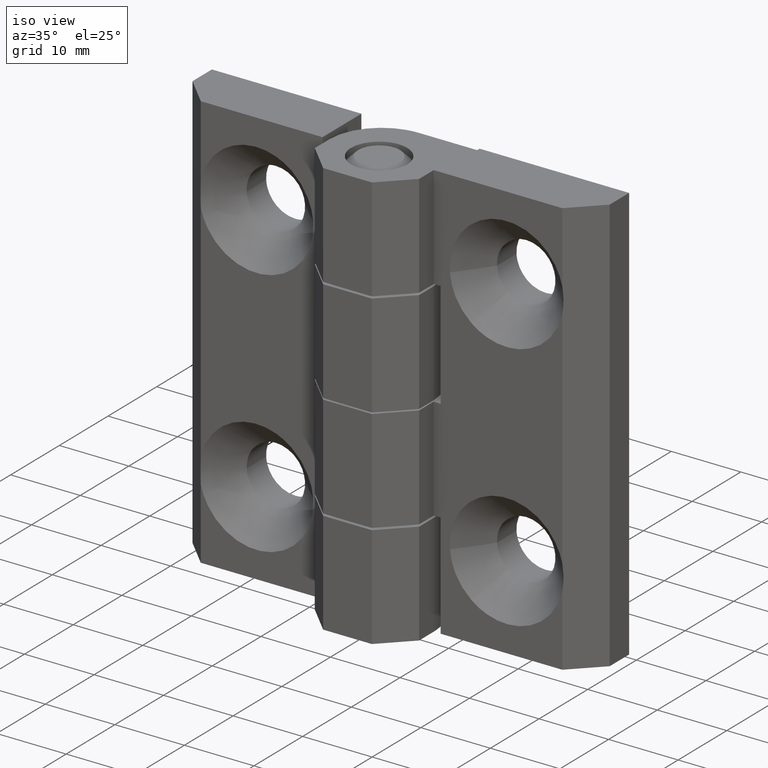
[diagram: clean part render]
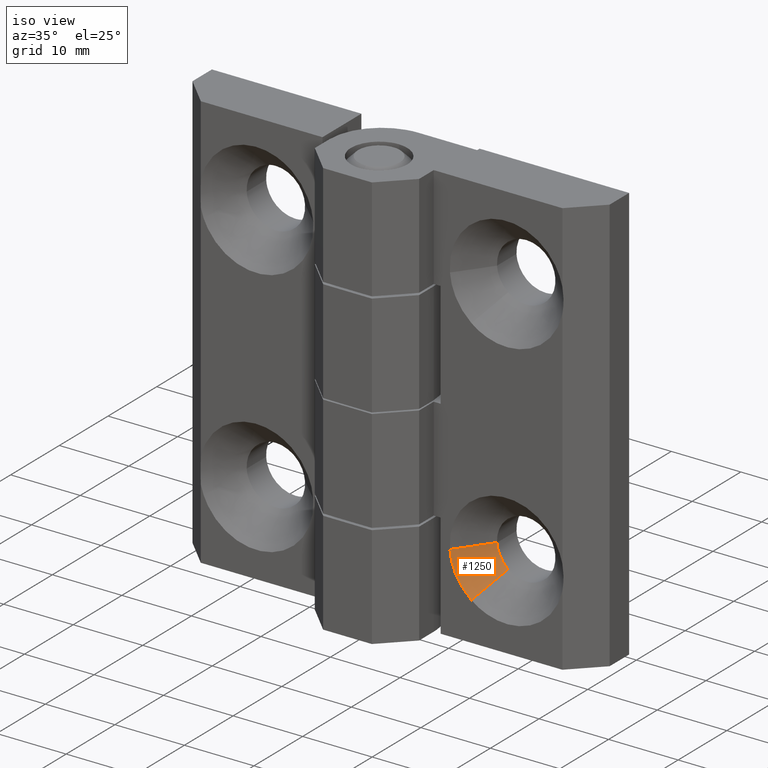
[diagram: same view with one face highlighted and labeled with its STEP entity id]
A machine part, iso view. The second image highlights one B-rep face of the part: STEP entity #1250.
In plain terms, the highlighted face is a freeform B-spline surface patch.
Its self-contained STEP definition (entity closure, byte-faithful):
#1003=CARTESIAN_POINT('',(13.807833080246731,4.500000213738550,11.743598313889439));
#1004=VERTEX_POINT('',#1003);
#1010=CARTESIAN_POINT('',(15.397966927834700,4.500000213737602,8.703119951495719));
#1011=VERTEX_POINT('',#1010);
#1012=CARTESIAN_POINT('',(15.397966927834695,4.500000213737601,8.703119951495719));
#1013=CARTESIAN_POINT('',(13.922576613751430,4.500000213738549,9.867558129953537));
#1014=CARTESIAN_POINT('',(13.807833080246729,4.500000213738549,11.743598313889439));
#1022=(BOUNDED_CURVE()B_SPLINE_CURVE(2,(#1012,#1013,#1014),.UNSPECIFIED.,.F.,.U.)B_SPLINE_CURVE_WITH_KNOTS((3,3),(0.607287704673677,0.739332962210119),.UNSPECIFIED.)CURVE()GEOMETRIC_REPRESENTATION_ITEM()RATIONAL_B_SPLINE_CURVE((0.856493807998295,0.834572980327044,0.976072041604942))REPRESENTATION_ITEM(''));
#1023=EDGE_CURVE('',#1011,#1004,#1022,.T.);
#1151=CARTESIAN_POINT('',(12.919840218967870,0.500000023747351,5.563233084947359));
#1152=VERTEX_POINT('',#1151);
#1153=CARTESIAN_POINT('',(15.397966927834700,4.500000213737602,8.703119951495719));
#1154=CARTESIAN_POINT('',(12.919840218967870,0.500000023747351,5.563233084947359));
#1155=QUASI_UNIFORM_CURVE('',1,(#1153,#1154),.UNSPECIFIED.,.F.,.U.);
#1156=EDGE_CURVE('',#1011,#1152,#1155,.T.);
#1184=CARTESIAN_POINT('',(9.828993015170363,0.500000023732270,11.311046084849741));
#1185=VERTEX_POINT('',#1184);
#1203=CARTESIAN_POINT('',(13.807833080246731,4.500000213738550,11.743598313889439));
#1204=CARTESIAN_POINT('',(9.828993015170363,0.500000023732270,11.311046084849741));
#1205=QUASI_UNIFORM_CURVE('',1,(#1203,#1204),.UNSPECIFIED.,.F.,.U.);
#1206=EDGE_CURVE('',#1004,#1185,#1205,.T.);
#1214=CARTESIAN_POINT('',(13.905357210387852,4.600000218488296,11.763912669761398));
#1215=CARTESIAN_POINT('',(13.909901471659609,4.600000218488296,11.710017814395240));
#1216=CARTESIAN_POINT('',(14.063916710903442,4.600000218488295,9.883399900760612));
#1217=CARTESIAN_POINT('',(15.467067100129340,4.600000218488296,8.775976415812416));
#1218=CARTESIAN_POINT('',(15.474213578770859,4.600000218488296,8.770336123550756));
#1219=CARTESIAN_POINT('',(9.708348933345258,0.397500018880243,11.521920903494575));
#1220=CARTESIAN_POINT('',(9.717551060801762,0.397500018880243,11.412783840577113));
#1221=CARTESIAN_POINT('',(10.029431865405563,0.397500018880243,7.713883216164438));
#1222=CARTESIAN_POINT('',(12.870810903742717,0.397500018880243,5.471351053642628));
#1223=CARTESIAN_POINT('',(12.885282520445999,0.397500018880243,5.459929463822012));
#1231=(BOUNDED_SURFACE()B_SPLINE_SURFACE(2,1,((#1214,#1219),(#1215,#1220),(#1216,#1221),(#1217,#1222),(#1218,#1223)),.UNSPECIFIED.,.F.,.F.,.U.)B_SPLINE_SURFACE_WITH_KNOTS((3,1,1,3),(2,2),(0.0,0.260833718453944,7.411482797931126,7.448355845824291),(0.0,5.944278460857187),.UNSPECIFIED.)GEOMETRIC_REPRESENTATION_ITEM()RATIONAL_B_SPLINE_SURFACE(((1.011111198939410,1.011111198939410),(1.005555599469705,1.005555599469705),(0.847695526217005,0.847695526217005),(0.853819120107549,0.853819120107549),(0.853850535046773,0.853850535046773)))REPRESENTATION_ITEM('')SURFACE());
#1232=ORIENTED_EDGE('',*,*,#1023,.T.);
#1233=ORIENTED_EDGE('',*,*,#1206,.T.);
#1234=CARTESIAN_POINT('',(12.919840218967870,0.500000023747351,5.563233084947359));
#1235=CARTESIAN_POINT('',(10.127833934926867,0.500000023748733,7.766798257193782));
#1236=CARTESIAN_POINT('',(9.828993015170363,0.500000023732270,11.311046084849737));
#1244=(BOUNDED_CURVE()B_SPLINE_CURVE(2,(#1234,#1235,#1236),.UNSPECIFIED.,.F.,.U.)B_SPLINE_CURVE_WITH_KNOTS((3,3),(0.346705304202936,0.484474259323915),.UNSPECIFIED.)CURVE()GEOMETRIC_REPRESENTATION_ITEM()RATIONAL_B_SPLINE_CURVE((0.879093540593004,0.847300762854194,0.970309358520641))REPRESENTATION_ITEM(''));
#1245=EDGE_CURVE('',#1152,#1185,#1244,.T.);
#1246=ORIENTED_EDGE('',*,*,#1245,.F.);
#1247=ORIENTED_EDGE('',*,*,#1156,.F.);
#1248=EDGE_LOOP('',(#1232,#1233,#1246,#1247));
#1249=FACE_OUTER_BOUND('',#1248,.T.);
#1250=ADVANCED_FACE('',(#1249),#1231,.F.);